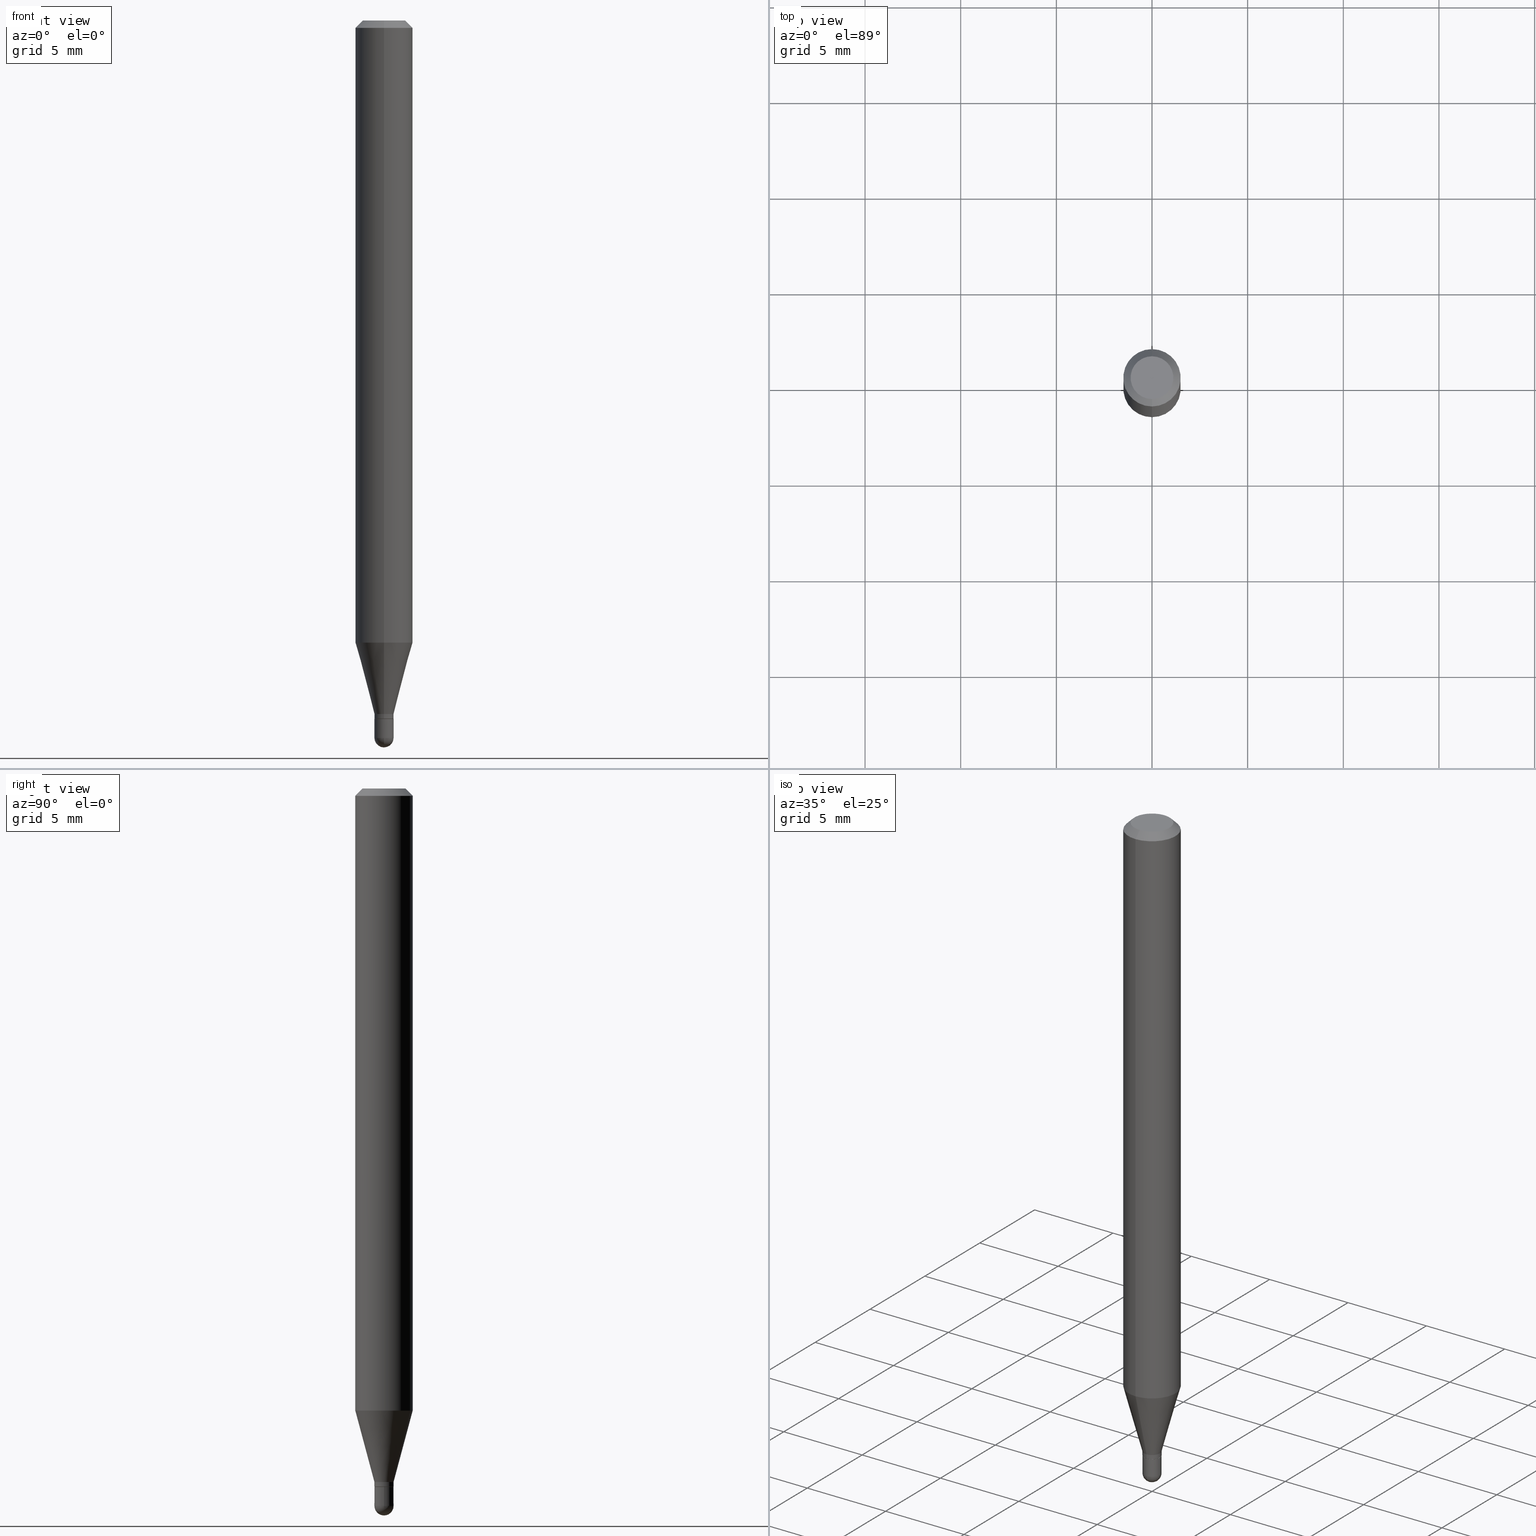
[diagram: canonical four-view strip — front | top / right | iso, engineering-drawing reading convention]
A machine part, canonical four-view strip (front | top / right | iso — engineering-drawing reading convention). The complete STEP part file that produces these views, byte-faithful:
ISO-10303-21;
HEADER;
FILE_DESCRIPTION (( 'STEP AP203' ),
    '1' );
FILE_NAME ('03185.STEP',
    '2024-03-08T18:31:07',
    ( '' ),
    ( '' ),
    'SwSTEP 2.0',
    'SolidWorks 2023',
    '' );
FILE_SCHEMA (( 'CONFIG_CONTROL_DESIGN' ));
ENDSEC;

DATA;
#1 = CARTESIAN_POINT ( 'NONE',  ( -0.01969999999999999876, 1.399769189447397278E-16, -9.690302127802162501E-31 ) ) ;
#2 = DATE_AND_TIME ( #351, #456 ) ;
#3 = VERTEX_POINT ( 'NONE', #493 ) ;
#4 = CARTESIAN_POINT ( 'NONE',  ( -4.123439461173739834E-16, -0.05904999999999999832, 2.061757182163971399E-16 ) ) ;
#5 = EDGE_CURVE ( 'NONE', #269, #329, #155, .T. ) ;
#6 = ORIENTED_EDGE ( 'NONE', *, *, #448, .F. ) ;
#7 = PLANE ( 'NONE',  #274 ) ;
#8 = AXIS2_PLACEMENT_3D ( 'NONE', #236, #350, #308 ) ;
#9 = CARTESIAN_POINT ( 'NONE',  ( -1.340728834115411522E-16, -0.01920000000000501514, -1.437000000000000055 ) ) ;
#10 = AXIS2_PLACEMENT_3D ( 'NONE', #72, #118, #232 ) ;
#11 = ADVANCED_FACE ( 'NONE', ( #133 ), #112, .T. ) ;
#12 = FACE_OUTER_BOUND ( 'NONE', #409, .T. ) ;
#13 = VECTOR ( 'NONE', #66, 39.37007874015748143 ) ;
#14 = APPLICATION_PROTOCOL_DEFINITION ( 'international standard', 'config_control_design', 1994, #435 ) ;
#15 = CARTESIAN_POINT ( 'NONE',  ( 4.195754854663702092E-16, 0.05904999999999550886, -1.280243800722165037 ) ) ;
#16 = DIRECTION ( 'NONE',  ( -2.445424517791391179E-29, 3.491544762343727703E-15, 1.000000000000000000 ) ) ;
#17 = APPROVAL_ROLE ( '' ) ;
#18 = EDGE_CURVE ( 'NONE', #305, #19, #286, .T. ) ;
#19 = VERTEX_POINT ( 'NONE', #98 ) ;
#20 = ORIENTED_EDGE ( 'NONE', *, *, #86, .F. ) ;
#21 = LINE ( 'NONE', #1, #411 ) ;
#22 = COORDINATED_UNIVERSAL_TIME_OFFSET ( 5, 0, .BEHIND. ) ;
#23 = EDGE_LOOP ( 'NONE', ( #221, #455, #477, #215 ) ) ;
#24 = LINE ( 'NONE', #485, #40 ) ;
#25 = EDGE_LOOP ( 'NONE', ( #260, #109, #227, #115 ) ) ;
#26 = ORIENTED_EDGE ( 'NONE', *, *, #342, .T. ) ;
#27 = ORIENTED_EDGE ( 'NONE', *, *, #481, .F. ) ;
#28 = FACE_OUTER_BOUND ( 'NONE', #500, .T. ) ;
#29 = CYLINDRICAL_SURFACE ( 'NONE', #88, 0.05904999999999999832 ) ;
#30 = DIRECTION ( 'NONE',  ( -2.445468806185136597E-29, 3.491481338843145583E-15, 1.000000000000000000 ) ) ;
#31 = APPROVAL_DATE_TIME ( #371, #90 ) ;
#32 = AXIS2_PLACEMENT_3D ( 'NONE', #365, #349, #361 ) ;
#33 = CARTESIAN_POINT ( 'NONE',  ( 3.514075032066228353E-29, -5.017349823487937648E-15, -1.437000000000000055 ) ) ;
#34 = ORIENTED_EDGE ( 'NONE', *, *, #311, .F. ) ;
#35 = CYLINDRICAL_SURFACE ( 'NONE', #415, 0.01969999999999991896 ) ;
#36 = EDGE_CURVE ( 'NONE', #269, #293, #21, .T. ) ;
#37 = CC_DESIGN_APPROVAL ( #90, ( #353 ) ) ;
#38 = DIRECTION ( 'NONE',  ( 1.000000000000000000, -6.982962677686265922E-15, 4.876176775795935232E-29 ) ) ;
#39 = COORDINATED_UNIVERSAL_TIME_OFFSET ( 5, 0, .BEHIND. ) ;
#40 = VECTOR ( 'NONE', #401, 39.37007874015748143 ) ;
#41 = CARTESIAN_POINT ( 'NONE',  ( 0.01969999999999999876, -5.223605231043229660E-15, -1.476399999999999935 ) ) ;
#42 = CIRCLE ( 'NONE', #300, 0.01969999999999991896 ) ;
#43 = PRODUCT_RELATED_PRODUCT_CATEGORY ( 'detail', '', ( #162 ) ) ;
#44 = LINE ( 'NONE', #395, #116 ) ;
#45 = DIRECTION ( 'NONE',  ( 1.000000000000000000, -6.982962677686278543E-15, 0.000000000000000000 ) ) ;
#46 = FACE_OUTER_BOUND ( 'NONE', #180, .T. ) ;
#47 = CARTESIAN_POINT ( 'NONE',  ( 3.489865329340093750E-29, -4.982783530340732136E-15, -1.427099999999999591 ) ) ;
#48 = SHAPE_DEFINITION_REPRESENTATION ( #81, #284 ) ;
#49 = EDGE_CURVE ( 'NONE', #225, #293, #479, .T. ) ;
#50 =( NAMED_UNIT ( * ) SI_UNIT ( $, .STERADIAN. ) SOLID_ANGLE_UNIT ( ) );
#51 = VECTOR ( 'NONE', #223, 39.37007874015748143 ) ;
#52 = CIRCLE ( 'NONE', #258, 0.01919999999999999485 ) ;
#53 =( CONVERSION_BASED_UNIT ( 'INCH', #441 ) LENGTH_UNIT ( ) NAMED_UNIT ( #157 ) );
#54 = ADVANCED_FACE ( 'NONE', ( #302 ), #272, .T. ) ;
#55 = DIRECTION ( 'NONE',  ( 1.000000000000000000, -6.982962677686278543E-15, 0.000000000000000000 ) ) ;
#56 = DATE_TIME_ROLE ( 'creation_date' ) ;
#57 = ORIENTED_EDGE ( 'NONE', *, *, #246, .F. ) ;
#58 = CARTESIAN_POINT ( 'NONE',  ( 3.608805467862051881E-29, -5.157235602862340147E-15, -1.476399999999999935 ) ) ;
#59 = ORIENTED_EDGE ( 'NONE', *, *, #400, .T. ) ;
#60 = CIRCLE ( 'NONE', #79, 0.05904999999999999832 ) ;
#61 = DIRECTION ( 'NONE',  ( -2.445424517791391179E-29, 3.491544762343728097E-15, 1.000000000000000000 ) ) ;
#62 = AXIS2_PLACEMENT_3D ( 'NONE', #189, #113, #38 ) ;
#63 = VERTEX_POINT ( 'NONE', #219 ) ;
#64 = ADVANCED_FACE ( 'NONE', ( #323 ), #492, .T. ) ;
#65 = EDGE_LOOP ( 'NONE', ( #26, #271, #230, #153 ) ) ;
#66 = DIRECTION ( 'NONE',  ( 1.839019923739602287E-15, 0.2588190451025252359, 0.9659258262890670910 ) ) ;
#67 = PLANE ( 'NONE',  #402 ) ;
#68 = EDGE_LOOP ( 'NONE', ( #99, #506, #504, #34, #321 ) ) ;
#69 = CALENDAR_DATE ( 2024, 8, 3 ) ;
#70 = VERTEX_POINT ( 'NONE', #457 ) ;
#71 = EDGE_CURVE ( 'NONE', #339, #345, #368, .T. ) ;
#72 = CARTESIAN_POINT ( 'NONE',  ( 3.608805467862051881E-29, -5.157235602862340147E-15, -1.476399999999999935 ) ) ;
#73 = AXIS2_PLACEMENT_3D ( 'NONE', #279, #245, #393 ) ;
#74 = ADVANCED_FACE ( 'NONE', ( #259 ), #67, .F. ) ;
#75 = FACE_OUTER_BOUND ( 'NONE', #256, .T. ) ;
#76 = CARTESIAN_POINT ( 'NONE',  ( 3.657823542138740784E-29, -5.224811508140389313E-15, -1.496099999999999541 ) ) ;
#77 = CYLINDRICAL_SURFACE ( 'NONE', #8, 0.05904999999999999832 ) ;
#78 = DIRECTION ( 'NONE',  ( -4.937700262164674260E-15, -0.7071067811865632269, 0.7071067811865319186 ) ) ;
#79 = AXIS2_PLACEMENT_3D ( 'NONE', #154, #424, #307 ) ;
#80 = ADVANCED_FACE ( 'NONE', ( #195 ), #156, .T. ) ;
#81 = PRODUCT_DEFINITION_SHAPE ( 'NONE', 'NONE',  #475 ) ;
#82 = CIRCLE ( 'NONE', #73, 0.04404999999999999888 ) ;
#83 = CARTESIAN_POINT ( 'NONE',  ( 1.071015214505298298E-45, -1.529181348837453317E-31, -4.379669896630447152E-17 ) ) ;
#84 = DIRECTION ( 'NONE',  ( -2.445468806185136597E-29, 3.491481338843145583E-15, 1.000000000000000000 ) ) ;
#85 = MANIFOLD_SOLID_BREP ( 'Body-Move/Copy2[1]', #503 ) ;
#86 = EDGE_CURVE ( 'NONE', #305, #3, #438, .T. ) ;
#87 = CARTESIAN_POINT ( 'NONE',  ( 3.512852319807333340E-29, -5.015604051106766083E-15, -1.436500000000000110 ) ) ;
#88 = AXIS2_PLACEMENT_3D ( 'NONE', #427, #161, #158 ) ;
#89 = DIRECTION ( 'NONE',  ( -2.445424517791391179E-29, 3.491544762343727703E-15, 1.000000000000000000 ) ) ;
#90 = APPROVAL ( #419, 'UNSPECIFIED' ) ;
#91 = DIRECTION ( 'NONE',  ( -6.982962677686265922E-15, -1.000000000000000000, 0.000000000000000000 ) ) ;
#92 = DIRECTION ( 'NONE',  ( 2.445424517791390619E-29, -3.491544762343728097E-15, -1.000000000000000000 ) ) ;
#93 = CALENDAR_DATE ( 2024, 8, 3 ) ;
#94 = DIRECTION ( 'NONE',  ( -6.982962677686266711E-15, -1.000000000000000000, 0.000000000000000000 ) ) ;
#95 = AXIS2_PLACEMENT_3D ( 'NONE', #243, #126, #247 ) ;
#96 = DIRECTION ( 'NONE',  ( -1.807323732225332111E-15, -0.2588190451025184635, 0.9659258262890689783 ) ) ;
#97 = ORIENTED_EDGE ( 'NONE', *, *, #246, .T. ) ;
#98 = CARTESIAN_POINT ( 'NONE',  ( -4.123439461173428234E-16, -0.05905000000000448779, -1.280243800722164371 ) ) ;
#99 = ORIENTED_EDGE ( 'NONE', *, *, #144, .T. ) ;
#100 = CARTESIAN_POINT ( 'NONE',  ( -4.051124067684085231E-16, -0.05905000000000005383, -0.01499999999999983812 ) ) ;
#101 = ORIENTED_EDGE ( 'NONE', *, *, #421, .F. ) ;
#102 = CARTESIAN_POINT ( 'NONE',  ( 3.610490145451735091E-29, -5.154823048668019264E-15, -1.476399999999999935 ) ) ;
#103 = PERSON ( 'UNSPECIFIED', 'UNSPECIFIED', 'UNSPECIFIED', ('UNSPECIFIED'), ('UNSPECIFIED'), ('UNSPECIFIED') ) ;
#104 = EDGE_CURVE ( 'NONE', #406, #19, #60, .T. ) ;
#105 = CIRCLE ( 'NONE', #238, 0.01969999999999991896 ) ;
#106 = DIRECTION ( 'NONE',  ( -2.445468806185136597E-29, 3.491481338843145583E-15, 1.000000000000000000 ) ) ;
#107 = ORIENTED_EDGE ( 'NONE', *, *, #495, .T. ) ;
#108 = CARTESIAN_POINT ( 'NONE',  ( 4.195754854663390985E-16, 0.05904999999999999832, -2.061757182163971399E-16 ) ) ;
#109 = ORIENTED_EDGE ( 'NONE', *, *, #211, .T. ) ;
#110 = DIRECTION ( 'NONE',  ( -6.982962677686265922E-15, -1.000000000000000000, 0.000000000000000000 ) ) ;
#111 = ORIENTED_EDGE ( 'NONE', *, *, #71, .F. ) ;
#112 = CONICAL_SURFACE ( 'NONE', #392, 0.05904999999999999832, 0.7853981633974483900 ) ;
#113 = DIRECTION ( 'NONE',  ( -2.445468806185136597E-29, 3.491481338843145583E-15, 1.000000000000000000 ) ) ;
#114 = CIRCLE ( 'NONE', #241, 0.01969999999999999876 ) ;
#115 = ORIENTED_EDGE ( 'NONE', *, *, #104, .F. ) ;
#116 = VECTOR ( 'NONE', #128, 39.37007874015748143 ) ;
#117 = FACE_OUTER_BOUND ( 'NONE', #496, .T. ) ;
#118 = DIRECTION ( 'NONE',  ( -1.000000000000000000, 6.982962677686266711E-15, -4.883557194083112340E-29 ) ) ;
#119 = SECURITY_CLASSIFICATION ( '', '', #291 ) ;
#120 = CARTESIAN_POINT ( 'NONE',  ( -1.375643647503839622E-16, -0.01970000000000490109, -1.427099999999999591 ) ) ;
#121 = ORIENTED_EDGE ( 'NONE', *, *, #509, .T. ) ;
#122 = CONICAL_SURFACE ( 'NONE', #362, 0.01919999999999999485, 0.7853981633974739252 ) ;
#123 = CARTESIAN_POINT ( 'NONE',  ( 1.375643647504545652E-16, 0.01969999999999498194, -1.437000000000000055 ) ) ;
#124 = CARTESIAN_POINT ( 'NONE',  ( 3.514075032066228353E-29, -5.017349823487937648E-15, -1.437000000000000055 ) ) ;
#125 = CARTESIAN_POINT ( 'NONE',  ( 3.075995059520799729E-16, 0.04404999999999999888, -1.757008962643934197E-16 ) ) ;
#126 = DIRECTION ( 'NONE',  ( -2.445424517791391179E-29, 3.491544762343727703E-15, 1.000000000000000000 ) ) ;
#127 = VECTOR ( 'NONE', #462, 39.37007874015748143 ) ;
#128 = DIRECTION ( 'NONE',  ( -2.445424517791391179E-29, 3.491544762343728097E-15, 1.000000000000000000 ) ) ;
#129 = DIRECTION ( 'NONE',  ( 6.982962677686265922E-15, 1.000000000000000000, -3.491544762343728097E-15 ) ) ;
#130 = APPLICATION_CONTEXT ( 'configuration controlled 3d designs of mechanical parts and assemblies' ) ;
#131 = EDGE_CURVE ( 'NONE', #345, #372, #360, .T. ) ;
#132 = DIRECTION ( 'NONE',  ( -6.982962677686265922E-15, -1.000000000000000000, 4.626330217890369336E-15 ) ) ;
#133 = FACE_OUTER_BOUND ( 'NONE', #177, .T. ) ;
#134 = PERSON_AND_ORGANIZATION_ROLE ( 'creator' ) ;
#135 = DIRECTION ( 'NONE',  ( -7.105427357601000281E-15, -1.000000000000000000, 0.000000000000000000 ) ) ;
#136 = CARTESIAN_POINT ( 'NONE',  ( 0.000000000000000000, 0.000000000000000000, 0.000000000000000000 ) ) ;
#137 = CIRCLE ( 'NONE', #423, 0.04404999999999999888 ) ;
#138 = CARTESIAN_POINT ( 'NONE',  ( 3.610490145451735091E-29, -5.154823048668019264E-15, -1.476399999999999935 ) ) ;
#139 = DATE_AND_TIME ( #147, #304 ) ;
#140 = VERTEX_POINT ( 'NONE', #426 ) ;
#141 = ORIENTED_EDGE ( 'NONE', *, *, #71, .T. ) ;
#142 = PERSON_AND_ORGANIZATION_ROLE ( 'classification_officer' ) ;
#143 = AXIS2_PLACEMENT_3D ( 'NONE', #384, #418, #473 ) ;
#144 = EDGE_CURVE ( 'NONE', #63, #269, #430, .T. ) ;
#145 = AXIS2_PLACEMENT_3D ( 'NONE', #125, #92, #129 ) ;
#146 = ORIENTED_EDGE ( 'NONE', *, *, #228, .T. ) ;
#147 = CALENDAR_DATE ( 2024, 8, 3 ) ;
#148 = ORIENTED_EDGE ( 'NONE', *, *, #363, .T. ) ;
#149 = AXIS2_PLACEMENT_3D ( 'NONE', #287, #359, #482 ) ;
#150 = CARTESIAN_POINT ( 'NONE',  ( 0.000000000000000000, 0.000000000000000000, 0.000000000000000000 ) ) ;
#151 = CARTESIAN_POINT ( 'NONE',  ( 3.608805467862051881E-29, -5.157235602862340147E-15, -1.476399999999999935 ) ) ;
#152 = ADVANCED_FACE ( 'NONE', ( #117 ), #29, .T. ) ;
#153 = ORIENTED_EDGE ( 'NONE', *, *, #228, .F. ) ;
#154 = CARTESIAN_POINT ( 'NONE',  ( 3.130739579036417639E-29, -4.470028536934500770E-15, -1.280243800722164815 ) ) ;
#155 = CIRCLE ( 'NONE', #491, 0.01969999999999999876 ) ;
#156 = SPHERICAL_SURFACE ( 'NONE', #10, 0.01969999999999989468 ) ;
#157 = DIMENSIONAL_EXPONENTS ( 1.000000000000000000, 0.000000000000000000, 0.000000000000000000, 0.000000000000000000, 0.000000000000000000, 0.000000000000000000, 0.000000000000000000 ) ;
#158 = DIRECTION ( 'NONE',  ( -6.982962677686265922E-15, -1.000000000000000000, 3.491544762343728097E-15 ) ) ;
#159 = DIRECTION ( 'NONE',  ( -2.445468806185136877E-29, 3.491481338843145188E-15, 1.000000000000000000 ) ) ;
#160 = APPROVAL_ROLE ( '' ) ;
#161 = DIRECTION ( 'NONE',  ( -2.445424517791391179E-29, 3.491544762343727703E-15, 1.000000000000000000 ) ) ;
#162 = PRODUCT ( '03185', '03185', '', ( #357 ) ) ;
#163 = CARTESIAN_POINT ( 'NONE',  ( -1.399769189447032430E-16, -0.01970000000000510232, -1.476399999999999935 ) ) ;
#164 = CIRCLE ( 'NONE', #149, 0.01969999999999989468 ) ;
#165 = CC_DESIGN_PERSON_AND_ORGANIZATION_ASSIGNMENT ( #379, #183, ( #353 ) ) ;
#166 = CARTESIAN_POINT ( 'NONE',  ( 0.000000000000000000, 0.000000000000000000, 0.000000000000000000 ) ) ;
#167 = CARTESIAN_POINT ( 'NONE',  ( 1.399769189447738214E-16, 0.01969999999999483623, -1.436500000000000110 ) ) ;
#168 = APPROVAL_PERSON_ORGANIZATION ( #172, #381, #17 ) ;
#169 = DIRECTION ( 'NONE',  ( -2.445424517791391179E-29, 3.491544762343727703E-15, 1.000000000000000000 ) ) ;
#170 = DIRECTION ( 'NONE',  ( 1.000000000000000000, 0.000000000000000000, 0.000000000000000000 ) ) ;
#171 = ADVANCED_FACE ( 'NONE', ( #268 ), #77, .T. ) ;
#172 = PERSON_AND_ORGANIZATION ( #103, #217 ) ;
#173 = APPROVAL_DATE_TIME ( #2, #374 ) ;
#174 = ORIENTED_EDGE ( 'NONE', *, *, #5, .T. ) ;
#175 = CARTESIAN_POINT ( 'NONE',  ( 3.514075032066228353E-29, -5.017349823487937648E-15, -1.437000000000000055 ) ) ;
#176 = LOCAL_TIME ( 13, 31, 7.000000000000000000, #498 ) ;
#177 = EDGE_LOOP ( 'NONE', ( #470, #141, #383, #463 ) ) ;
#178 = PERSON_AND_ORGANIZATION ( #103, #217 ) ;
#179 = VECTOR ( 'NONE', #96, 39.37007874015748854 ) ;
#180 = EDGE_LOOP ( 'NONE', ( #294, #460, #101, #474 ) ) ;
#181 = DIRECTION ( 'NONE',  ( 1.000000000000000000, -6.982962677686278543E-15, 0.000000000000000000 ) ) ;
#182 = CIRCLE ( 'NONE', #222, 0.01969999999999999876 ) ;
#183 = PERSON_AND_ORGANIZATION_ROLE ( 'design_supplier' ) ;
#184 = ADVANCED_FACE ( 'NONE', ( #75 ), #289, .T. ) ;
#185 = ORIENTED_EDGE ( 'NONE', *, *, #211, .F. ) ;
#186 = DATE_TIME_ROLE ( 'classification_date' ) ;
#187 = ORIENTED_EDGE ( 'NONE', *, *, #267, .F. ) ;
#188 = VERTEX_POINT ( 'NONE', #41 ) ;
#189 = CARTESIAN_POINT ( 'NONE',  ( 0.000000000000000000, 0.000000000000000000, 0.000000000000000000 ) ) ;
#190 = DIRECTION ( 'NONE',  ( 1.000000000000000000, -6.982962677686278543E-15, 0.000000000000000000 ) ) ;
#191 = ORIENTED_EDGE ( 'NONE', *, *, #49, .T. ) ;
#192 = DIRECTION ( 'NONE',  ( 1.000000000000000000, -6.982962677686278543E-15, 0.000000000000000000 ) ) ;
#193 = FACE_OUTER_BOUND ( 'NONE', #23, .T. ) ;
#194 = DESIGN_CONTEXT ( 'detailed design', #435, 'design' ) ;
#195 = FACE_OUTER_BOUND ( 'NONE', #264, .T. ) ;
#196 = CIRCLE ( 'NONE', #484, 0.01919999999999999485 ) ;
#197 = ORIENTED_EDGE ( 'NONE', *, *, #448, .T. ) ;
#198 = EDGE_CURVE ( 'NONE', #467, #372, #466, .T. ) ;
#199 =( NAMED_UNIT ( * ) PLANE_ANGLE_UNIT ( ) SI_UNIT ( $, .RADIAN. ) );
#200 = DIRECTION ( 'NONE',  ( -2.445424517791391179E-29, 3.491544762343727703E-15, 1.000000000000000000 ) ) ;
#201 = ADVANCED_FACE ( 'NONE', ( #386 ), #476, .T. ) ;
#202 = LINE ( 'NONE', #431, #432 ) ;
#203 = CLOSED_SHELL ( 'NONE', ( #251, #472, #11, #152, #315, #489, #171, #184, #486, #74, #54, #64 ) ) ;
#204 = CC_DESIGN_DATE_AND_TIME_ASSIGNMENT ( #224, #186, ( #119 ) ) ;
#205 = CIRCLE ( 'NONE', #510, 0.01969999999999999876 ) ;
#206 = CARTESIAN_POINT ( 'NONE',  ( -0.01969999999999999876, -4.946063947348069559E-15, -1.476399999999999935 ) ) ;
#207 = DIRECTION ( 'NONE',  ( -2.445424517791391179E-29, 3.491544762343727703E-15, 1.000000000000000000 ) ) ;
#208 = APPLICATION_PROTOCOL_DEFINITION ( 'international standard', 'config_control_design', 1994, #130 ) ;
#209 = CARTESIAN_POINT ( 'NONE',  ( -0.01969999999999999876, -4.946063947348069559E-15, -1.437000000000000055 ) ) ;
#210 = PERSON_AND_ORGANIZATION_ROLE ( 'design_owner' ) ;
#211 = EDGE_CURVE ( 'NONE', #3, #305, #105, .T. ) ;
#212 = AXIS2_PLACEMENT_3D ( 'NONE', #151, #422, #265 ) ;
#213 = FACE_OUTER_BOUND ( 'NONE', #376, .T. ) ;
#214 = DIRECTION ( 'NONE',  ( -1.000000000000000000, 7.105427357601001070E-15, -4.926315508542082329E-29 ) ) ;
#215 = ORIENTED_EDGE ( 'NONE', *, *, #144, .F. ) ;
#216 = ORIENTED_EDGE ( 'NONE', *, *, #342, .F. ) ;
#217 = ORGANIZATION ( 'UNSPECIFIED', 'UNSPECIFIED', '' ) ;
#218 = DIRECTION ( 'NONE',  ( -2.445468806185136597E-29, 3.491481338843145583E-15, 1.000000000000000000 ) ) ;
#219 = CARTESIAN_POINT ( 'NONE',  ( 1.375643647504551815E-16, 0.01969999999999479112, -1.476399999999999935 ) ) ;
#220 = ORIENTED_EDGE ( 'NONE', *, *, #391, .T. ) ;
#221 = ORIENTED_EDGE ( 'NONE', *, *, #502, .F. ) ;
#222 = AXIS2_PLACEMENT_3D ( 'NONE', #433, #84, #45 ) ;
#223 = DIRECTION ( 'NONE',  ( -4.851104656540964275E-15, -0.7071067811865500152, -0.7071067811865450192 ) ) ;
#224 = DATE_AND_TIME ( #454, #176 ) ;
#225 = VERTEX_POINT ( 'NONE', #505 ) ;
#226 = APPROVAL_ROLE ( '' ) ;
#227 = ORIENTED_EDGE ( 'NONE', *, *, #18, .T. ) ;
#228 = EDGE_CURVE ( 'NONE', #254, #70, #303, .T. ) ;
#229 = DIRECTION ( 'NONE',  ( -6.982962677686265922E-15, -1.000000000000000000, 0.000000000000000000 ) ) ;
#230 = ORIENTED_EDGE ( 'NONE', *, *, #495, .F. ) ;
#231 = CYLINDRICAL_SURFACE ( 'NONE', #337, 0.01969999999999999876 ) ;
#232 = DIRECTION ( 'NONE',  ( 6.982962677686266711E-15, 1.000000000000000000, 0.000000000000000000 ) ) ;
#233 = UNCERTAINTY_MEASURE_WITH_UNIT (LENGTH_MEASURE( 1.000000000000000082E-05 ), #53, 'distance_accuracy_value', 'NONE');
#234 = DIRECTION ( 'NONE',  ( -2.445424517791391179E-29, 3.491544762343728097E-15, 1.000000000000000000 ) ) ;
#235 = FACE_OUTER_BOUND ( 'NONE', #65, .T. ) ;
#236 = CARTESIAN_POINT ( 'NONE',  ( 0.000000000000000000, 0.000000000000000000, 0.000000000000000000 ) ) ;
#237 = SPHERICAL_SURFACE ( 'NONE', #212, 0.01969999999999989468 ) ;
#238 = AXIS2_PLACEMENT_3D ( 'NONE', #507, #346, #110 ) ;
#239 = ADVANCED_FACE ( 'NONE', ( #193 ), #237, .T. ) ;
#240 = DIRECTION ( 'NONE',  ( -2.445424517791391179E-29, 3.491544762343727703E-15, 1.000000000000000000 ) ) ;
#241 = AXIS2_PLACEMENT_3D ( 'NONE', #252, #218, #181 ) ;
#242 = DIRECTION ( 'NONE',  ( -6.982962677686265133E-15, -1.000000000000000000, 3.491544762343727308E-15 ) ) ;
#243 = CARTESIAN_POINT ( 'NONE',  ( 3.512852319807333340E-29, -5.015604051106766083E-15, -1.436500000000000110 ) ) ;
#244 = LOCAL_TIME ( 13, 31, 7.000000000000000000, #22 ) ;
#245 = DIRECTION ( 'NONE',  ( -2.445424517791391179E-29, 3.491544762343727703E-15, 1.000000000000000000 ) ) ;
#246 = EDGE_CURVE ( 'NONE', #406, #372, #512, .T. ) ;
#247 = DIRECTION ( 'NONE',  ( -6.982962677686265922E-15, -1.000000000000000000, 0.000000000000000000 ) ) ;
#248 = CONICAL_SURFACE ( 'NONE', #32, 0.01969999999999991896, 0.2617993877991505736 ) ;
#249 = MANIFOLD_SOLID_BREP ( 'Body-Move/Copy2[2]', #203 ) ;
#250 = ORIENTED_EDGE ( 'NONE', *, *, #502, .T. ) ;
#251 = ADVANCED_FACE ( 'NONE', ( #261 ), #35, .T. ) ;
#252 = CARTESIAN_POINT ( 'NONE',  ( 3.610490145451735091E-29, -5.154823048668019264E-15, -1.476399999999999935 ) ) ;
#253 = EDGE_LOOP ( 'NONE', ( #107, #197, #20, #366 ) ) ;
#254 = VERTEX_POINT ( 'NONE', #9 ) ;
#255 = LINE ( 'NONE', #410, #313 ) ;
#256 = EDGE_LOOP ( 'NONE', ( #111, #416, #405, #262 ) ) ;
#257 = DIRECTION ( 'NONE',  ( -2.445468806185136597E-29, 3.491481338843145583E-15, 1.000000000000000000 ) ) ;
#258 = AXIS2_PLACEMENT_3D ( 'NONE', #310, #169, #439 ) ;
#259 = FACE_OUTER_BOUND ( 'NONE', #299, .T. ) ;
#260 = ORIENTED_EDGE ( 'NONE', *, *, #452, .F. ) ;
#261 = FACE_OUTER_BOUND ( 'NONE', #253, .T. ) ;
#262 = ORIENTED_EDGE ( 'NONE', *, *, #481, .T. ) ;
#263 = CARTESIAN_POINT ( 'NONE',  ( 3.599717260347271507E-16, 0.04404999999999999888, -1.975992457475456801E-16 ) ) ;
#264 = EDGE_LOOP ( 'NONE', ( #385, #250, #334, #326 ) ) ;
#265 = DIRECTION ( 'NONE',  ( 6.982962677686266711E-15, 1.000000000000000000, 0.000000000000000000 ) ) ;
#266 = VECTOR ( 'NONE', #78, 39.37007874015748143 ) ;
#267 = EDGE_CURVE ( 'NONE', #140, #254, #196, .T. ) ;
#268 = FACE_OUTER_BOUND ( 'NONE', #343, .T. ) ;
#269 = VERTEX_POINT ( 'NONE', #206 ) ;
#270 = CARTESIAN_POINT ( 'NONE',  ( -1.340728834115411522E-16, -0.01920000000000501514, -1.437000000000000055 ) ) ;
#271 = ORIENTED_EDGE ( 'NONE', *, *, #412, .T. ) ;
#272 = CONICAL_SURFACE ( 'NONE', #280, 0.01919999999999999485, 0.7853981633974739252 ) ;
#273 = CARTESIAN_POINT ( 'NONE',  ( 0.000000000000000000, 0.000000000000000000, 0.000000000000000000 ) ) ;
#274 = AXIS2_PLACEMENT_3D ( 'NONE', #123, #355, #358 ) ;
#275 = CARTESIAN_POINT ( 'NONE',  ( 4.195754854663707023E-16, 0.05904999999999995669, -0.01500000000000025271 ) ) ;
#276 =( GEOMETRIC_REPRESENTATION_CONTEXT ( 3 ) GLOBAL_UNCERTAINTY_ASSIGNED_CONTEXT ( ( #233 ) ) GLOBAL_UNIT_ASSIGNED_CONTEXT ( ( #53, #199, #50 ) ) REPRESENTATION_CONTEXT ( 'NONE', 'WORKASPACE' ) );
#277 = DIRECTION ( 'NONE',  ( -6.982962677686266711E-15, -1.000000000000000000, 0.000000000000000000 ) ) ;
#278 = DIRECTION ( 'NONE',  ( -6.982962677686265922E-15, -1.000000000000000000, 3.505890868245046092E-15 ) ) ;
#279 = CARTESIAN_POINT ( 'NONE',  ( 1.071015214505298298E-45, -1.529181348837453317E-31, -4.379669896630447152E-17 ) ) ;
#280 = AXIS2_PLACEMENT_3D ( 'NONE', #341, #16, #94 ) ;
#281 =( LENGTH_UNIT ( ) NAMED_UNIT ( * ) SI_UNIT ( $, .METRE. ) );
#282 = CC_DESIGN_DATE_AND_TIME_ASSIGNMENT ( #139, #56, ( #475 ) ) ;
#283 = FACE_OUTER_BOUND ( 'NONE', #25, .T. ) ;
#284 = ADVANCED_BREP_SHAPE_REPRESENTATION ( '03185', ( #85, #249, #292 ), #276 ) ;
#285 = CARTESIAN_POINT ( 'NONE',  ( 3.130739579036417639E-29, -4.470028536934500770E-15, -1.280243800722164815 ) ) ;
#286 = LINE ( 'NONE', #445, #179 ) ;
#287 = CARTESIAN_POINT ( 'NONE',  ( 3.608805467862051881E-29, -5.157235602862340147E-15, -1.476399999999999935 ) ) ;
#288 = CC_DESIGN_PERSON_AND_ORGANIZATION_ASSIGNMENT ( #490, #134, ( #475 ) ) ;
#289 = CONICAL_SURFACE ( 'NONE', #373, 0.05904999999999999832, 0.7853981633974483900 ) ;
#290 = CARTESIAN_POINT ( 'NONE',  ( 3.668136776687097612E-31, -5.237317143515606690E-17, -0.01500000000000004455 ) ) ;
#291 = SECURITY_CLASSIFICATION_LEVEL ( 'unclassified' ) ;
#292 = AXIS2_PLACEMENT_3D ( 'NONE', #166, #314, #170 ) ;
#293 = VERTEX_POINT ( 'NONE', #209 ) ;
#294 = ORIENTED_EDGE ( 'NONE', *, *, #86, .T. ) ;
#295 = PERSON_AND_ORGANIZATION_ROLE ( 'creator' ) ;
#296 = AXIS2_PLACEMENT_3D ( 'NONE', #382, #200, #229 ) ;
#297 = ORIENTED_EDGE ( 'NONE', *, *, #320, .T. ) ;
#298 = AXIS2_PLACEMENT_3D ( 'NONE', #396, #446, #278 ) ;
#299 = EDGE_LOOP ( 'NONE', ( #216, #187 ) ) ;
#300 = AXIS2_PLACEMENT_3D ( 'NONE', #87, #398, #91 ) ;
#301 = DIRECTION ( 'NONE',  ( -6.982962677686265922E-15, -1.000000000000000000, 3.491544762343728097E-15 ) ) ;
#302 = FACE_OUTER_BOUND ( 'NONE', #497, .T. ) ;
#303 = LINE ( 'NONE', #270, #266 ) ;
#304 = LOCAL_TIME ( 13, 31, 7.000000000000000000, #39 ) ;
#305 = VERTEX_POINT ( 'NONE', #120 ) ;
#306 = CC_DESIGN_PERSON_AND_ORGANIZATION_ASSIGNMENT ( #413, #295, ( #353 ) ) ;
#307 = DIRECTION ( 'NONE',  ( -6.982962677686265922E-15, -1.000000000000000000, 4.626330217890369336E-15 ) ) ;
#308 = DIRECTION ( 'NONE',  ( -6.982962677686265922E-15, -1.000000000000000000, 3.491544762343728097E-15 ) ) ;
#309 = CARTESIAN_POINT ( 'NONE',  ( 3.514138674488041056E-29, -5.017258683917600838E-15, -1.437000000000000055 ) ) ;
#310 = CARTESIAN_POINT ( 'NONE',  ( 3.514075032066228353E-29, -5.017349823487937648E-15, -1.437000000000000055 ) ) ;
#311 = EDGE_CURVE ( 'NONE', #188, #225, #202, .T. ) ;
#312 = COORDINATED_UNIVERSAL_TIME_OFFSET ( 5, 0, .BEHIND. ) ;
#313 = VECTOR ( 'NONE', #61, 39.37007874015748143 ) ;
#314 = DIRECTION ( 'NONE',  ( 0.000000000000000000, 0.000000000000000000, 1.000000000000000000 ) ) ;
#315 = ADVANCED_FACE ( 'NONE', ( #46 ), #461, .T. ) ;
#316 = CC_DESIGN_PERSON_AND_ORGANIZATION_ASSIGNMENT ( #408, #142, ( #119 ) ) ;
#317 = DIRECTION ( 'NONE',  ( -6.982962677686265922E-15, -1.000000000000000000, 3.491544762343727703E-15 ) ) ;
#318 = CIRCLE ( 'NONE', #404, 0.05904999999999999832 ) ;
#319 = APPROVAL_STATUS ( 'not_yet_approved' ) ;
#320 = EDGE_CURVE ( 'NONE', #467, #339, #82, .T. ) ;
#321 = ORIENTED_EDGE ( 'NONE', *, *, #434, .T. ) ;
#322 = APPROVAL_DATE_TIME ( #403, #381 ) ;
#323 = FACE_OUTER_BOUND ( 'NONE', #420, .T. ) ;
#324 = AXIS2_PLACEMENT_3D ( 'NONE', #309, #30, #190 ) ;
#325 = ORIENTED_EDGE ( 'NONE', *, *, #356, .T. ) ;
#326 = ORIENTED_EDGE ( 'NONE', *, *, #400, .F. ) ;
#327 = AXIS2_PLACEMENT_3D ( 'NONE', #58, #214, #135 ) ;
#328 = AXIS2_PLACEMENT_3D ( 'NONE', #47, #240, #442 ) ;
#329 = VERTEX_POINT ( 'NONE', #163 ) ;
#330 = PERSON_AND_ORGANIZATION ( #103, #217 ) ;
#331 = ORIENTED_EDGE ( 'NONE', *, *, #391, .F. ) ;
#332 = LOCAL_TIME ( 13, 31, 7.000000000000000000, #444 ) ;
#333 = ADVANCED_FACE ( 'NONE', ( #12 ), #7, .F. ) ;
#334 = ORIENTED_EDGE ( 'NONE', *, *, #434, .F. ) ;
#335 = AXIS2_PLACEMENT_3D ( 'NONE', #378, #511, #192 ) ;
#336 = VERTEX_POINT ( 'NONE', #167 ) ;
#337 = AXIS2_PLACEMENT_3D ( 'NONE', #150, #471, #425 ) ;
#338 = CARTESIAN_POINT ( 'NONE',  ( 4.123439461173743285E-16, 0.05904999999999994975, -0.01500000000000025271 ) ) ;
#339 = VERTEX_POINT ( 'NONE', #390 ) ;
#340 = DIRECTION ( 'NONE',  ( 2.445424517791391179E-29, -3.491544762343727703E-15, -1.000000000000000000 ) ) ;
#341 = CARTESIAN_POINT ( 'NONE',  ( 3.514075032066228353E-29, -5.017349823487937648E-15, -1.437000000000000055 ) ) ;
#342 = EDGE_CURVE ( 'NONE', #254, #140, #52, .T. ) ;
#343 = EDGE_LOOP ( 'NONE', ( #57, #348, #325, #27 ) ) ;
#344 = APPROVAL_STATUS ( 'not_yet_approved' ) ;
#345 = VERTEX_POINT ( 'NONE', #483 ) ;
#346 = DIRECTION ( 'NONE',  ( -2.445424517791391179E-29, 3.491544762343727703E-15, 1.000000000000000000 ) ) ;
#347 = VECTOR ( 'NONE', #234, 39.37007874015748143 ) ;
#348 = ORIENTED_EDGE ( 'NONE', *, *, #104, .T. ) ;
#349 = DIRECTION ( 'NONE',  ( -2.445424517791391179E-29, 3.491544762343727703E-15, 1.000000000000000000 ) ) ;
#350 = DIRECTION ( 'NONE',  ( -2.445424517791391179E-29, 3.491544762343727703E-15, 1.000000000000000000 ) ) ;
#351 = CALENDAR_DATE ( 2024, 8, 3 ) ;
#352 = APPROVAL_PERSON_ORGANIZATION ( #178, #90, #226 ) ;
#353 = PRODUCT_DEFINITION_FORMATION_WITH_SPECIFIED_SOURCE ( 'ANY', '', #162, .NOT_KNOWN. ) ;
#354 = DIRECTION ( 'NONE',  ( -2.445424517791391179E-29, 3.491544762343727703E-15, 1.000000000000000000 ) ) ;
#355 = DIRECTION ( 'NONE',  ( 2.438088387897960049E-29, -3.491481338843145188E-15, -1.000000000000000000 ) ) ;
#356 = EDGE_CURVE ( 'NONE', #19, #345, #397, .T. ) ;
#357 = MECHANICAL_CONTEXT ( 'NONE', #130, 'mechanical' ) ;
#358 = DIRECTION ( 'NONE',  ( -1.000000000000000000, 6.982962677686265922E-15, -4.876176775795935793E-29 ) ) ;
#359 = DIRECTION ( 'NONE',  ( 1.000000000000000000, -6.982962677686265922E-15, 4.883557194083112340E-29 ) ) ;
#360 = CIRCLE ( 'NONE', #143, 0.05904999999999999832 ) ;
#361 = DIRECTION ( 'NONE',  ( -6.982962677686265922E-15, -1.000000000000000000, 0.000000000000000000 ) ) ;
#362 = AXIS2_PLACEMENT_3D ( 'NONE', #175, #487, #387 ) ;
#363 = EDGE_CURVE ( 'NONE', #339, #467, #137, .T. ) ;
#364 = DIRECTION ( 'NONE',  ( -2.445424517791391179E-29, 3.491544762343727703E-15, 1.000000000000000000 ) ) ;
#365 = CARTESIAN_POINT ( 'NONE',  ( 3.489865329340093750E-29, -4.982783530340732136E-15, -1.427099999999999591 ) ) ;
#366 = ORIENTED_EDGE ( 'NONE', *, *, #370, .F. ) ;
#367 = ORIENTED_EDGE ( 'NONE', *, *, #311, .T. ) ;
#368 = LINE ( 'NONE', #100, #51 ) ;
#369 = DIRECTION ( 'NONE',  ( 1.000000000000000000, -6.982962677686278543E-15, 0.000000000000000000 ) ) ;
#370 = EDGE_CURVE ( 'NONE', #70, #305, #44, .T. ) ;
#371 = DATE_AND_TIME ( #69, #244 ) ;
#372 = VERTEX_POINT ( 'NONE', #275 ) ;
#373 = AXIS2_PLACEMENT_3D ( 'NONE', #388, #340, #469 ) ;
#374 = APPROVAL ( #344, 'UNSPECIFIED' ) ;
#375 = ORIENTED_EDGE ( 'NONE', *, *, #267, .T. ) ;
#376 = EDGE_LOOP ( 'NONE', ( #297, #148 ) ) ;
#377 = APPROVAL_PERSON_ORGANIZATION ( #330, #374, #160 ) ;
#378 = CARTESIAN_POINT ( 'NONE',  ( 3.610490145451735091E-29, -5.154823048668019264E-15, -1.476399999999999935 ) ) ;
#379 = PERSON_AND_ORGANIZATION ( #103, #217 ) ;
#380 = CIRCLE ( 'NONE', #298, 0.05904999999999999832 ) ;
#381 = APPROVAL ( #319, 'UNSPECIFIED' ) ;
#382 = CARTESIAN_POINT ( 'NONE',  ( 3.489865329340093750E-29, -4.982783530340732136E-15, -1.427099999999999591 ) ) ;
#383 = ORIENTED_EDGE ( 'NONE', *, *, #131, .T. ) ;
#384 = CARTESIAN_POINT ( 'NONE',  ( 3.668136776687097612E-31, -5.237317143515606690E-17, -0.01500000000000004455 ) ) ;
#385 = ORIENTED_EDGE ( 'NONE', *, *, #428, .F. ) ;
#386 = FACE_OUTER_BOUND ( 'NONE', #68, .T. ) ;
#387 = DIRECTION ( 'NONE',  ( -6.982962677686266711E-15, -1.000000000000000000, 0.000000000000000000 ) ) ;
#388 = CARTESIAN_POINT ( 'NONE',  ( 3.668136776687097612E-31, -5.237317143515606690E-17, -0.01500000000000004455 ) ) ;
#389 = ORIENTED_EDGE ( 'NONE', *, *, #412, .F. ) ;
#390 = CARTESIAN_POINT ( 'NONE',  ( -3.536586717851222218E-16, -0.04404999999999999888, 1.100058478149367124E-16 ) ) ;
#391 = EDGE_CURVE ( 'NONE', #293, #225, #182, .T. ) ;
#392 = AXIS2_PLACEMENT_3D ( 'NONE', #290, #450, #453 ) ;
#393 = DIRECTION ( 'NONE',  ( -6.982962677686265133E-15, -1.000000000000000000, 3.491544762343727308E-15 ) ) ;
#394 = CC_DESIGN_PERSON_AND_ORGANIZATION_ASSIGNMENT ( #443, #210, ( #162 ) ) ;
#395 = CARTESIAN_POINT ( 'NONE',  ( -1.375643647504188693E-16, -0.01969999999999991896, 6.878343181817115440E-17 ) ) ;
#396 = CARTESIAN_POINT ( 'NONE',  ( 3.668136776687097612E-31, -5.237317143515606690E-17, -0.01500000000000004455 ) ) ;
#397 = LINE ( 'NONE', #4, #440 ) ;
#398 = DIRECTION ( 'NONE',  ( -2.445424517791391179E-29, 3.491544762343727703E-15, 1.000000000000000000 ) ) ;
#399 = CC_DESIGN_SECURITY_CLASSIFICATION ( #119, ( #353 ) ) ;
#400 = EDGE_CURVE ( 'NONE', #329, #188, #205, .T. ) ;
#401 = DIRECTION ( 'NONE',  ( 5.024295867788190974E-15, 0.7071067811865681119, 0.7071067811865270336 ) ) ;
#402 = AXIS2_PLACEMENT_3D ( 'NONE', #33, #508, #301 ) ;
#403 = DATE_AND_TIME ( #93, #332 ) ;
#404 = AXIS2_PLACEMENT_3D ( 'NONE', #285, #364, #132 ) ;
#405 = ORIENTED_EDGE ( 'NONE', *, *, #198, .T. ) ;
#406 = VERTEX_POINT ( 'NONE', #15 ) ;
#407 = DIRECTION ( 'NONE',  ( -6.982962677686265922E-15, -1.000000000000000000, 3.491544762343727703E-15 ) ) ;
#408 = PERSON_AND_ORGANIZATION ( #103, #217 ) ;
#409 = EDGE_LOOP ( 'NONE', ( #191, #220 ) ) ;
#410 = CARTESIAN_POINT ( 'NONE',  ( 1.399769189447391362E-16, 0.01969999999999991896, -6.878343181817115440E-17 ) ) ;
#411 = VECTOR ( 'NONE', #159, 39.37007874015748143 ) ;
#412 = EDGE_CURVE ( 'NONE', #140, #336, #24, .T. ) ;
#413 = PERSON_AND_ORGANIZATION ( #103, #217 ) ;
#414 = ORIENTED_EDGE ( 'NONE', *, *, #370, .T. ) ;
#415 = AXIS2_PLACEMENT_3D ( 'NONE', #273, #354, #317 ) ;
#416 = ORIENTED_EDGE ( 'NONE', *, *, #320, .F. ) ;
#417 = CARTESIAN_POINT ( 'NONE',  ( 1.399769189447740433E-16, 0.01969999999999494031, -1.427099999999999591 ) ) ;
#418 = DIRECTION ( 'NONE',  ( -2.445424517791391179E-29, 3.491544762343727703E-15, 1.000000000000000000 ) ) ;
#419 = APPROVAL_STATUS ( 'not_yet_approved' ) ;
#420 = EDGE_LOOP ( 'NONE', ( #6, #121, #414, #185 ) ) ;
#421 = EDGE_CURVE ( 'NONE', #19, #406, #318, .T. ) ;
#422 = DIRECTION ( 'NONE',  ( -1.000000000000000000, 6.982962677686266711E-15, -4.883557194083112340E-29 ) ) ;
#423 = AXIS2_PLACEMENT_3D ( 'NONE', #83, #89, #242 ) ;
#424 = DIRECTION ( 'NONE',  ( -2.445424517791391179E-29, 3.491544762343727703E-15, 1.000000000000000000 ) ) ;
#425 = DIRECTION ( 'NONE',  ( 1.000000000000000000, -6.982962677686265922E-15, 4.876176775795935232E-29 ) ) ;
#426 = CARTESIAN_POINT ( 'NONE',  ( 1.382005621053742843E-16, 0.01919999999999497803, -1.437000000000000055 ) ) ;
#427 = CARTESIAN_POINT ( 'NONE',  ( 0.000000000000000000, 0.000000000000000000, 0.000000000000000000 ) ) ;
#428 = EDGE_CURVE ( 'NONE', #465, #329, #494, .T. ) ;
#429 = ORIENTED_EDGE ( 'NONE', *, *, #356, .F. ) ;
#430 = CIRCLE ( 'NONE', #335, 0.01969999999999999876 ) ;
#431 = CARTESIAN_POINT ( 'NONE',  ( 0.01969999999999999876, -1.375643647504194363E-16, 9.606068248317991466E-31 ) ) ;
#432 = VECTOR ( 'NONE', #436, 39.37007874015748143 ) ;
#433 = CARTESIAN_POINT ( 'NONE',  ( 3.514138674488041056E-29, -5.017258683917600838E-15, -1.437000000000000055 ) ) ;
#434 = EDGE_CURVE ( 'NONE', #188, #63, #114, .T. ) ;
#435 = APPLICATION_CONTEXT ( 'configuration controlled 3d designs of mechanical parts and assemblies' ) ;
#436 = DIRECTION ( 'NONE',  ( -2.445468806185136877E-29, 3.491481338843145188E-15, 1.000000000000000000 ) ) ;
#437 = PLANE ( 'NONE',  #145 ) ;
#438 = CIRCLE ( 'NONE', #296, 0.01969999999999991896 ) ;
#439 = DIRECTION ( 'NONE',  ( -6.982962677686266711E-15, -1.000000000000000000, 0.000000000000000000 ) ) ;
#440 = VECTOR ( 'NONE', #478, 39.37007874015748143 ) ;
#441 = LENGTH_MEASURE_WITH_UNIT ( LENGTH_MEASURE( 0.02539999999999999897 ), #281 );
#442 = DIRECTION ( 'NONE',  ( -6.982962677686265922E-15, -1.000000000000000000, 0.000000000000000000 ) ) ;
#443 = PERSON_AND_ORGANIZATION ( #103, #217 ) ;
#444 = COORDINATED_UNIVERSAL_TIME_OFFSET ( 5, 0, .BEHIND. ) ;
#445 = CARTESIAN_POINT ( 'NONE',  ( -1.375643647503839622E-16, -0.01970000000000490109, -1.427099999999999591 ) ) ;
#446 = DIRECTION ( 'NONE',  ( -2.445424517791391179E-29, 3.491544762343727703E-15, 1.000000000000000000 ) ) ;
#447 = ORIENTED_EDGE ( 'NONE', *, *, #36, .F. ) ;
#448 = EDGE_CURVE ( 'NONE', #336, #3, #255, .T. ) ;
#449 = DIRECTION ( 'NONE',  ( -2.445424517791391179E-29, 3.491544762343727703E-15, 1.000000000000000000 ) ) ;
#450 = DIRECTION ( 'NONE',  ( 2.445424517791391179E-29, -3.491544762343727703E-15, -1.000000000000000000 ) ) ;
#451 = ORIENTED_EDGE ( 'NONE', *, *, #421, .T. ) ;
#452 = EDGE_CURVE ( 'NONE', #3, #406, #468, .T. ) ;
#453 = DIRECTION ( 'NONE',  ( 6.982962677686265922E-15, 1.000000000000000000, -3.505890868245046092E-15 ) ) ;
#454 = CALENDAR_DATE ( 2024, 8, 3 ) ;
#455 = ORIENTED_EDGE ( 'NONE', *, *, #428, .T. ) ;
#456 = LOCAL_TIME ( 13, 31, 7.000000000000000000, #312 ) ;
#457 = CARTESIAN_POINT ( 'NONE',  ( -1.375643647503842333E-16, -0.01970000000000500517, -1.436500000000000110 ) ) ;
#458 = AXIS2_PLACEMENT_3D ( 'NONE', #136, #449, #407 ) ;
#459 = ORIENTED_EDGE ( 'NONE', *, *, #131, .F. ) ;
#460 = ORIENTED_EDGE ( 'NONE', *, *, #452, .T. ) ;
#461 = CONICAL_SURFACE ( 'NONE', #328, 0.01969999999999991896, 0.2617993877991505736 ) ;
#462 = DIRECTION ( 'NONE',  ( 4.937700262164548042E-15, 0.7071067811865451302, -0.7071067811865499042 ) ) ;
#463 = ORIENTED_EDGE ( 'NONE', *, *, #198, .F. ) ;
#464 = ADVANCED_FACE ( 'NONE', ( #28 ), #231, .T. ) ;
#465 = VERTEX_POINT ( 'NONE', #76 ) ;
#466 = LINE ( 'NONE', #338, #127 ) ;
#467 = VERTEX_POINT ( 'NONE', #263 ) ;
#468 = LINE ( 'NONE', #417, #13 ) ;
#469 = DIRECTION ( 'NONE',  ( 6.982962677686265922E-15, 1.000000000000000000, -3.505890868245046092E-15 ) ) ;
#470 = ORIENTED_EDGE ( 'NONE', *, *, #363, .F. ) ;
#471 = DIRECTION ( 'NONE',  ( -2.445468806185136597E-29, 3.491481338843145583E-15, 1.000000000000000000 ) ) ;
#472 = ADVANCED_FACE ( 'NONE', ( #235 ), #122, .T. ) ;
#473 = DIRECTION ( 'NONE',  ( -6.982962677686265922E-15, -1.000000000000000000, 3.505890868245046092E-15 ) ) ;
#474 = ORIENTED_EDGE ( 'NONE', *, *, #18, .F. ) ;
#475 = PRODUCT_DEFINITION ( 'UNKNOWN', '', #353, #194 ) ;
#476 = CYLINDRICAL_SURFACE ( 'NONE', #62, 0.01969999999999999876 ) ;
#477 = ORIENTED_EDGE ( 'NONE', *, *, #5, .F. ) ;
#478 = DIRECTION ( 'NONE',  ( -2.445424517791391179E-29, 3.491544762343728097E-15, 1.000000000000000000 ) ) ;
#479 = CIRCLE ( 'NONE', #324, 0.01969999999999999876 ) ;
#480 = CIRCLE ( 'NONE', #95, 0.01969999999999991896 ) ;
#481 = EDGE_CURVE ( 'NONE', #372, #345, #380, .T. ) ;
#482 = DIRECTION ( 'NONE',  ( 6.982962677686266711E-15, 1.000000000000000000, 0.000000000000000000 ) ) ;
#483 = CARTESIAN_POINT ( 'NONE',  ( -4.123439461173736383E-16, -0.05905000000000005383, -0.01499999999999983812 ) ) ;
#484 = AXIS2_PLACEMENT_3D ( 'NONE', #124, #207, #277 ) ;
#485 = CARTESIAN_POINT ( 'NONE',  ( 1.364242052659743280E-16, 0.01919999999999497803, -1.437000000000000055 ) ) ;
#486 = ADVANCED_FACE ( 'NONE', ( #213 ), #437, .F. ) ;
#487 = DIRECTION ( 'NONE',  ( -2.445424517791391179E-29, 3.491544762343727703E-15, 1.000000000000000000 ) ) ;
#488 = CC_DESIGN_APPROVAL ( #381, ( #475 ) ) ;
#489 = ADVANCED_FACE ( 'NONE', ( #283 ), #248, .T. ) ;
#490 = PERSON_AND_ORGANIZATION ( #103, #217 ) ;
#491 = AXIS2_PLACEMENT_3D ( 'NONE', #138, #106, #369 ) ;
#492 = CYLINDRICAL_SURFACE ( 'NONE', #458, 0.01969999999999991896 ) ;
#493 = CARTESIAN_POINT ( 'NONE',  ( 2.797762022055723851E-16, 0.01969999999999494031, -1.427099999999999591 ) ) ;
#494 = CIRCLE ( 'NONE', #327, 0.01969999999999989468 ) ;
#495 = EDGE_CURVE ( 'NONE', #70, #336, #480, .T. ) ;
#496 = EDGE_LOOP ( 'NONE', ( #451, #97, #459, #429 ) ) ;
#497 = EDGE_LOOP ( 'NONE', ( #389, #375, #146, #499 ) ) ;
#498 = COORDINATED_UNIVERSAL_TIME_OFFSET ( 5, 0, .BEHIND. ) ;
#499 = ORIENTED_EDGE ( 'NONE', *, *, #509, .F. ) ;
#500 = EDGE_LOOP ( 'NONE', ( #447, #174, #59, #367, #331 ) ) ;
#501 = CC_DESIGN_APPROVAL ( #374, ( #119 ) ) ;
#502 = EDGE_CURVE ( 'NONE', #465, #63, #164, .T. ) ;
#503 = CLOSED_SHELL ( 'NONE', ( #201, #239, #333, #80, #464 ) ) ;
#504 = ORIENTED_EDGE ( 'NONE', *, *, #49, .F. ) ;
#505 = CARTESIAN_POINT ( 'NONE',  ( 0.01969999999999999876, -5.154823048668020053E-15, -1.437000000000000055 ) ) ;
#506 = ORIENTED_EDGE ( 'NONE', *, *, #36, .T. ) ;
#507 = CARTESIAN_POINT ( 'NONE',  ( 3.489865329340093750E-29, -4.982783530340732136E-15, -1.427099999999999591 ) ) ;
#508 = DIRECTION ( 'NONE',  ( -2.445424517791390619E-29, 3.491544762343728097E-15, 1.000000000000000000 ) ) ;
#509 = EDGE_CURVE ( 'NONE', #336, #70, #42, .T. ) ;
#510 = AXIS2_PLACEMENT_3D ( 'NONE', #102, #257, #55 ) ;
#511 = DIRECTION ( 'NONE',  ( -2.445468806185136597E-29, 3.491481338843145583E-15, 1.000000000000000000 ) ) ;
#512 = LINE ( 'NONE', #108, #347 ) ;
ENDSEC;
END-ISO-10303-21;
